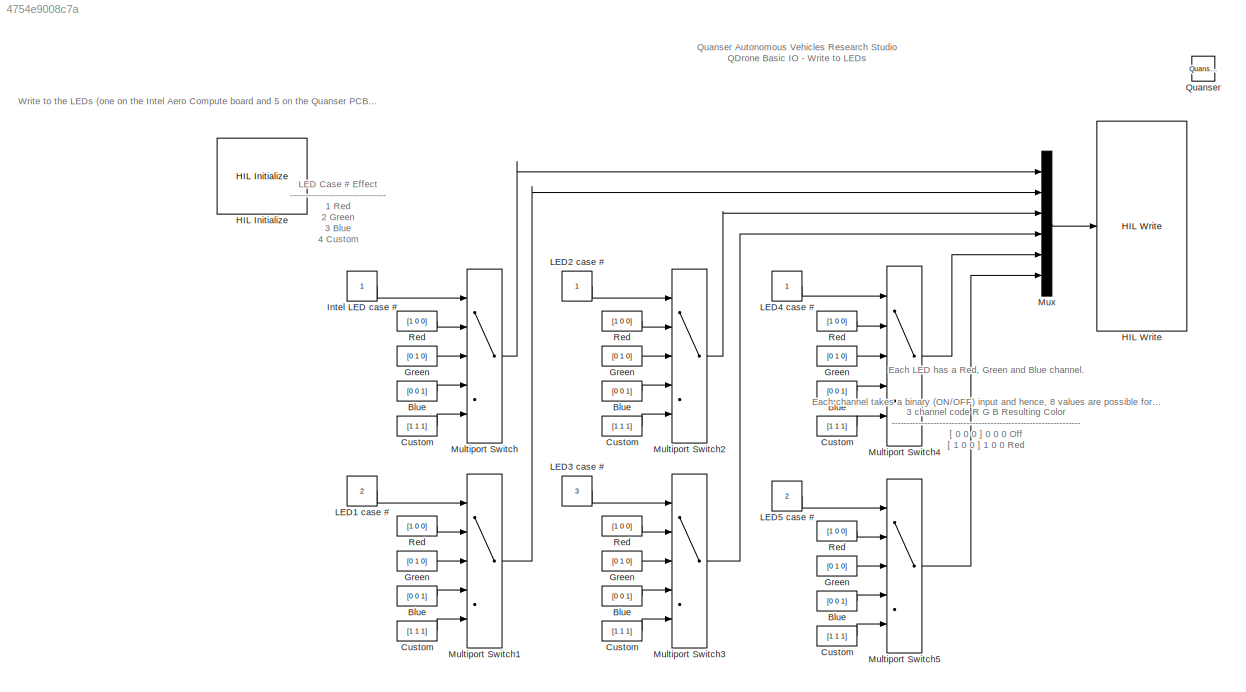
MODEL slx_4754e9008c7a
KIND model
CONFIG AbsTol = auto
CONFIG EnableMultiTasking = on
CONFIG FixedStep = 0.001
CONFIG InitFcn = set_param(gcs, 'ZoomFactor','FitSystem')
CONFIG MaxStep = auto
CONFIG MinStep = auto
CONFIG RelTol = 1e-3
CONFIG SampleTimeConstraint = Unconstrained
CONFIG Solver = ode2
CONFIG SolverName = ode2
CONFIG StartTime = 0.0
CONFIG StopTime = inf
WORKSPACE source: MAT-file member
WORKSPACE target_system = 1
BLOCK [Constant]      Blue     
  Value = [0 0 1]
BLOCK [Constant]      Custom     
  Value = [1 1 1]
BLOCK [Constant]      Green     
  Value = [0 1 0]
BLOCK [Constant]      Red     
  Value = [1 0 0]
BLOCK [Constant]     Blue    
  Value = [0 0 1]
BLOCK [Constant]     Custom    
  Value = [1 1 1]
BLOCK [Constant]     Green    
  Value = [0 1 0]
BLOCK [Constant]     Red    
  Value = [1 0 0]
BLOCK [Constant]    Blue   
  Value = [0 0 1]
BLOCK [Constant]    Custom   
  Value = [1 1 1]
BLOCK [Constant]    Green   
  Value = [0 1 0]
BLOCK [Constant]    Red   
  Value = [1 0 0]
BLOCK [Constant]   Blue  
  Value = [0 0 1]
BLOCK [Constant]   Custom  
  Value = [1 1 1]
BLOCK [Constant]   Green  
  Value = [0 1 0]
BLOCK [Constant]   Red  
  Value = [1 0 0]
BLOCK [Constant]  Blue 
  Value = [0 0 1]
BLOCK [Constant]  Custom 
  Value = [1 1 1]
BLOCK [Constant]  Green 
  Value = [0 1 0]
BLOCK [Constant]  Red 
  Value = [1 0 0]
BLOCK [Constant] Blue
  Value = [0 0 1]
BLOCK [Constant] Custom
  Value = [1 1 1]
BLOCK [Constant] Green
  Value = [0 1 0]
BLOCK [Reference] HIL Initialize  REF=quarc_library/Data Acquisition/Generic/Configuration/HIL Initialize
  AttributesFormatString = %<object_name> (%<board_type>-%<board_number>)
  Ports = []
  SourceBlock = quarc_library/Data Acquisition/Generic/Configuration/HIL Initialize
  SourceProductName = The database <userpath>\AppData\Roaming\MathWorks\MATLAB\R2017a\slblocks_master.db is locked, or a table in the database is locked. (database is locked)
  SourceType = HIL Initialize
  UserDataPersistent = on
BLOCK [Reference] HIL Write  REF=quarc_library/Data Acquisition/Generic/Immediate I//O/HIL Write
  AttributesFormatString = (%<object_name>)
  Ports = [1]
  SourceBlock = quarc_library/Data Acquisition/Generic/Immediate I//O/HIL Write
  SourceProductName = The database <userpath>\AppData\Roaming\MathWorks\MATLAB\R2017a\slblocks_master.db is locked, or a table in the database is locked. (database is locked)
  SourceType = HIL Write
  UserDataPersistent = on
BLOCK [Constant] Intel LED case #
BLOCK [Constant] LED1 case #
  Value = 2
BLOCK [Constant] LED2 case #
BLOCK [Constant] LED3 case #
  Value = 3
BLOCK [Constant] LED4 case #
BLOCK [Constant] LED5 case #
  Value = 2
BLOCK [MultiPortSwitch] Multiport Switch
  InputSameDT = off
  Inputs = 4
  Ports = [5, 1]
  SaturateOnIntegerOverflow = off
BLOCK [MultiPortSwitch] Multiport Switch1
  InputSameDT = off
  Inputs = 4
  Ports = [5, 1]
  SaturateOnIntegerOverflow = off
BLOCK [MultiPortSwitch] Multiport Switch2
  InputSameDT = off
  Inputs = 4
  Ports = [5, 1]
  SaturateOnIntegerOverflow = off
BLOCK [MultiPortSwitch] Multiport Switch3
  InputSameDT = off
  Inputs = 4
  Ports = [5, 1]
  SaturateOnIntegerOverflow = off
BLOCK [MultiPortSwitch] Multiport Switch4
  InputSameDT = off
  Inputs = 4
  Ports = [5, 1]
  SaturateOnIntegerOverflow = off
BLOCK [MultiPortSwitch] Multiport Switch5
  InputSameDT = off
  Inputs = 4
  Ports = [5, 1]
  SaturateOnIntegerOverflow = off
BLOCK [Mux] Mux
  DisplayOption = bar
  Inputs = 6
  Ports = [6, 1]
BLOCK [Reference] Quanser  REF=quarc_library/Logos/Quanser
  Ports = []
  SourceBlock = quarc_library/Logos/Quanser
  SourceProductName = QUARC Targets
  SourceType = Powered by Quanser
BLOCK [Constant] Red
  Value = [1 0 0]
ANNOTATION (root): Quanser Autonomous Vehicles Research Studio QDrone Basic IO - Write to LEDs
ANNOTATION (root): Each LED has a Red, Green and Blue channel.
ANNOTATION (root): Each channel takes a binary (ON/OFF) input and hence, 8 values are possible for each LED. 3 channel code R G B Resulting Color --------------------------------------------------------------- [ 0 0 0 ] 0 0 0 Off [ 1 0 0 ] 1 0 0 Red [ 0 1 0 ] 0 1 0 Green [ 0 0 1 ] 0 0 1 Blue [ 1 1 0 ] 1 1 0 Yellow [ 0 1 1 ] 0 1 1 Cyan [ 1 0 1 ] 1 0 1 Purple [ 1 1 1 ] 1 1 1 White
ANNOTATION (root): LED Case # Effect -------------------------------- 1 Red 2 Green 3 Blue 4 Custom
ANNOTATION (root): Write to the LEDs (one on the Intel Aero Compute board and 5 on the Quanser PCB).
LINE      Blue     :1 -> Multiport Switch1:4
LINE      Custom     :1 -> Multiport Switch5:5
LINE      Green     :1 -> Multiport Switch1:3
LINE      Red     :1 -> Multiport Switch1:2
LINE     Blue    :1 -> Multiport Switch2:4
LINE     Custom    :1 -> Multiport Switch4:5
LINE     Green    :1 -> Multiport Switch2:3
LINE     Red    :1 -> Multiport Switch2:2
LINE    Blue   :1 -> Multiport Switch3:4
LINE    Custom   :1 -> Multiport Switch2:5
LINE    Green   :1 -> Multiport Switch3:3
LINE    Red   :1 -> Multiport Switch3:2
LINE   Blue  :1 -> Multiport Switch5:4
LINE   Custom  :1 -> Multiport Switch3:5
LINE   Green  :1 -> Multiport Switch5:3
LINE   Red  :1 -> Multiport Switch5:2
LINE  Blue :1 -> Multiport Switch4:4
LINE  Custom :1 -> Multiport Switch1:5
LINE  Green :1 -> Multiport Switch4:3
LINE  Red :1 -> Multiport Switch4:2
LINE Blue:1 -> Multiport Switch:4
LINE Custom:1 -> Multiport Switch:5
LINE Green:1 -> Multiport Switch:3
LINE Intel LED case #:1 -> Multiport Switch:1
LINE LED1 case #:1 -> Multiport Switch1:1
LINE LED2 case #:1 -> Multiport Switch2:1
LINE LED3 case #:1 -> Multiport Switch3:1
LINE LED4 case #:1 -> Multiport Switch4:1
LINE LED5 case #:1 -> Multiport Switch5:1
LINE Multiport Switch1:1 -> Mux:2
LINE Multiport Switch2:1 -> Mux:3
LINE Multiport Switch3:1 -> Mux:4
LINE Multiport Switch4:1 -> Mux:5
LINE Multiport Switch5:1 -> Mux:6
LINE Multiport Switch:1 -> Mux:1
LINE Mux:1 -> HIL Write:1
LINE Red:1 -> Multiport Switch:2
